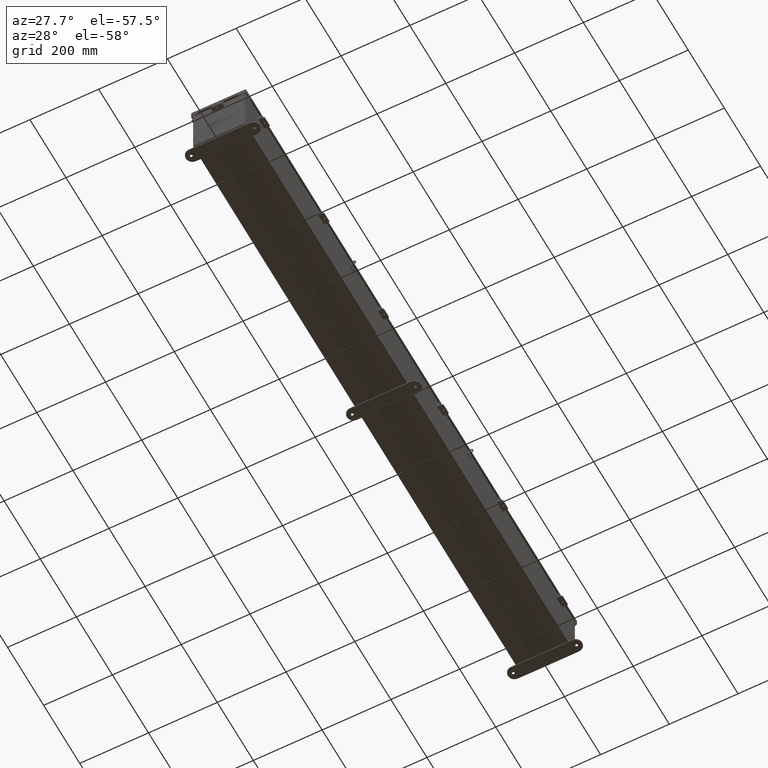
[diagram: clean part render]
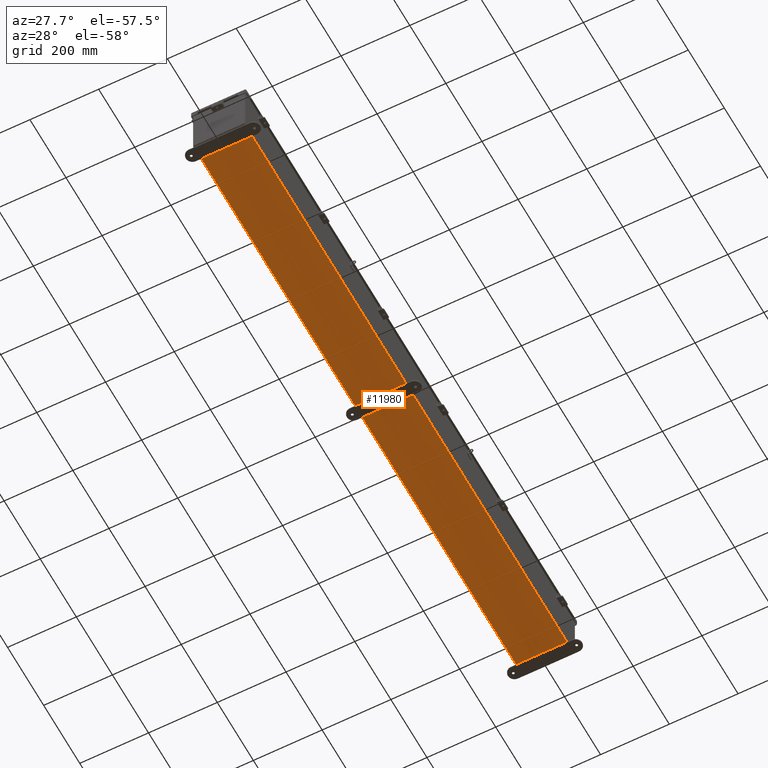
[diagram: same view with one face highlighted and labeled with its STEP entity id]
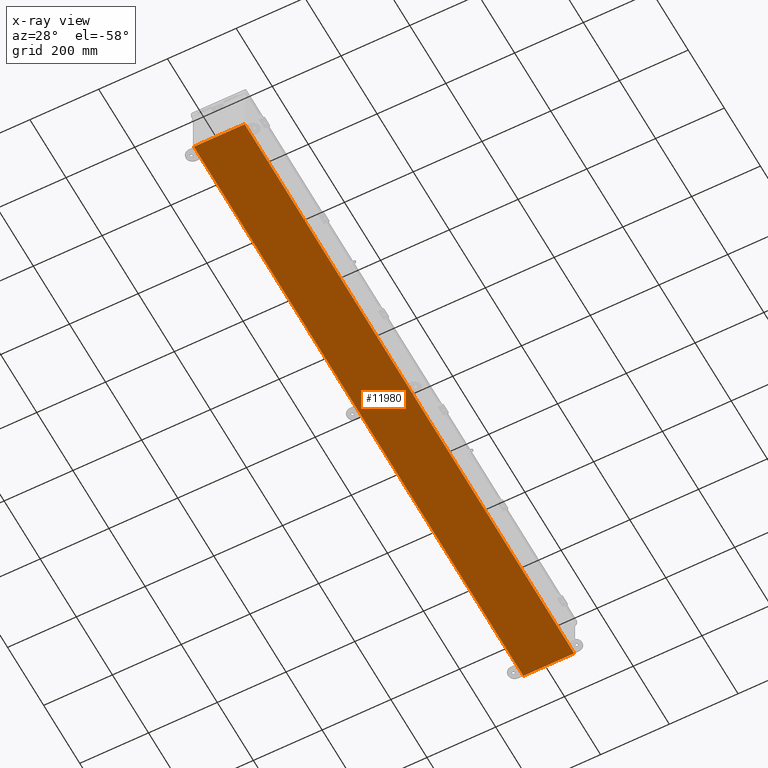
[diagram: x-ray of the same camera — body ghosted, the highlighted face saturated]
A machine part, auxiliary view. The second image highlights one B-rep face of the part: STEP entity #11980.
The next image is the same camera in x-ray: the body ghosted, the highlighted face saturated — about 0% of this face is hidden behind the body in this view.
In plain terms, the highlighted planar face has unit normal (0, 0, -1).
Its self-contained STEP definition (entity closure, byte-faithful):
#569 = EDGE_LOOP ( 'NONE', ( #47439, #3403, #45735, #16726 ) ) ;
#3403 = ORIENTED_EDGE ( 'NONE', *, *, #28293, .T. ) ;
#3470 = VERTEX_POINT ( 'NONE', #4302 ) ;
#4302 = CARTESIAN_POINT ( 'NONE',  ( -2.912299999999998300, 35.92530000000001400, -0.07470000000000000300 ) ) ;
#5430 = CARTESIAN_POINT ( 'NONE',  ( -2.999999999999998700, 35.92530000000001400, -0.07470000000000000300 ) ) ;
#5962 = VECTOR ( 'NONE', #32522, 39.37007874015748100 ) ;
#6295 = VERTEX_POINT ( 'NONE', #8696 ) ;
#7584 = VECTOR ( 'NONE', #25262, 39.37007874015748100 ) ;
#7967 = CARTESIAN_POINT ( 'NONE',  ( -2.999999999999998700, -35.92529999999999300, -0.07470000000000000300 ) ) ;
#8696 = CARTESIAN_POINT ( 'NONE',  ( -2.912299999999998300, -35.92529999999999300, -0.07470000000000076600 ) ) ;
#9069 = FACE_OUTER_BOUND ( 'NONE', #569, .T. ) ;
#11980 = ADVANCED_FACE ( 'NONE', ( #9069 ), #14409, .T. ) ;
#12871 = EDGE_CURVE ( 'NONE', #41296, #3470, #38038, .T. ) ;
#14409 = PLANE ( 'NONE',  #37354 ) ;
#16726 = ORIENTED_EDGE ( 'NONE', *, *, #49262, .T. ) ;
#17506 = DIRECTION ( 'NONE',  ( -0.0000000000000000000, 1.000000000000000000, -0.0000000000000000000 ) ) ;
#18361 = DIRECTION ( 'NONE',  ( 0.0000000000000000000, 0.0000000000000000000, -1.000000000000000000 ) ) ;
#18671 = LINE ( 'NONE', #7967, #29014 ) ;
#24014 = CARTESIAN_POINT ( 'NONE',  ( 2.912300000000001400, 35.92530000000000700, -0.07469999999999994700 ) ) ;
#25262 = DIRECTION ( 'NONE',  ( -0.0000000000000000000, -1.000000000000000000, -0.0000000000000000000 ) ) ;
#28293 = EDGE_CURVE ( 'NONE', #41296, #44745, #38458, .T. ) ;
#29014 = VECTOR ( 'NONE', #31179, 39.37007874015748100 ) ;
#31179 = DIRECTION ( 'NONE',  ( 1.000000000000000000, 0.0000000000000000000, 0.0000000000000000000 ) ) ;
#32522 = DIRECTION ( 'NONE',  ( -1.000000000000000000, -0.0000000000000000000, -0.0000000000000000000 ) ) ;
#32918 = CARTESIAN_POINT ( 'NONE',  ( -2.912299999999998300, -35.92530000000000000, -0.07470000000000076600 ) ) ;
#35150 = LINE ( 'NONE', #32918, #44212 ) ;
#35849 = EDGE_CURVE ( 'NONE', #6295, #44745, #18671, .T. ) ;
#37354 = AXIS2_PLACEMENT_3D ( 'NONE', #41547, #18361, #45441 ) ;
#38038 = LINE ( 'NONE', #5430, #5962 ) ;
#38458 = LINE ( 'NONE', #44505, #7584 ) ;
#41296 = VERTEX_POINT ( 'NONE', #24014 ) ;
#41547 = CARTESIAN_POINT ( 'NONE',  ( 0.0000000000000000000, 0.0000000000000000000, -0.07470000000000000300 ) ) ;
#44212 = VECTOR ( 'NONE', #17506, 39.37007874015748100 ) ;
#44505 = CARTESIAN_POINT ( 'NONE',  ( 2.912300000000001400, 35.92530000000001400, -0.07469999999999994700 ) ) ;
#44745 = VERTEX_POINT ( 'NONE', #45350 ) ;
#45350 = CARTESIAN_POINT ( 'NONE',  ( 2.912300000000001400, -35.92530000000000000, -0.07470000000000000300 ) ) ;
#45441 = DIRECTION ( 'NONE',  ( -1.000000000000000000, 0.0000000000000000000, -0.0000000000000000000 ) ) ;
#45735 = ORIENTED_EDGE ( 'NONE', *, *, #35849, .F. ) ;
#47439 = ORIENTED_EDGE ( 'NONE', *, *, #12871, .F. ) ;
#49262 = EDGE_CURVE ( 'NONE', #6295, #3470, #35150, .T. ) ;